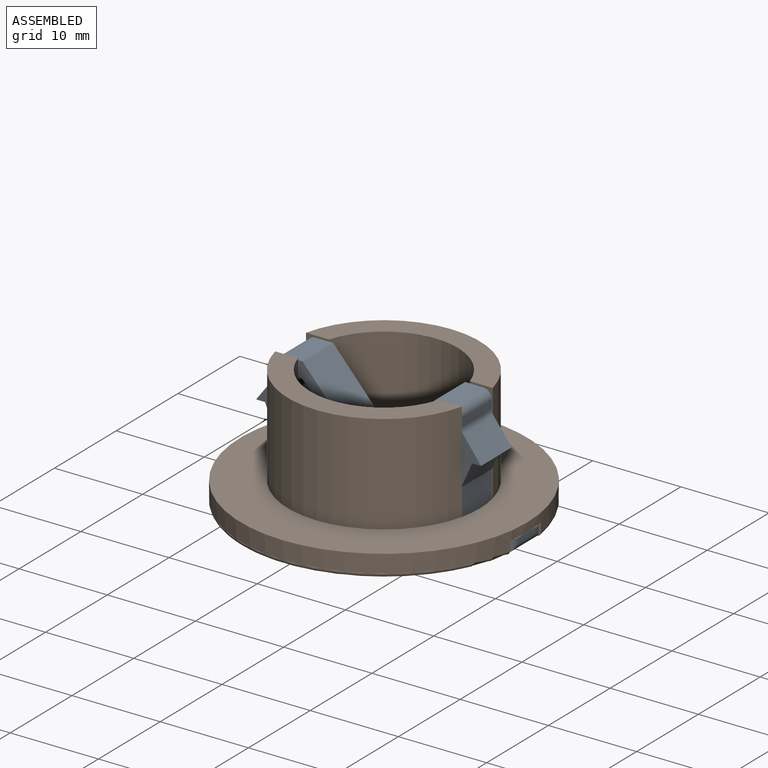
[diagram: assembled view]
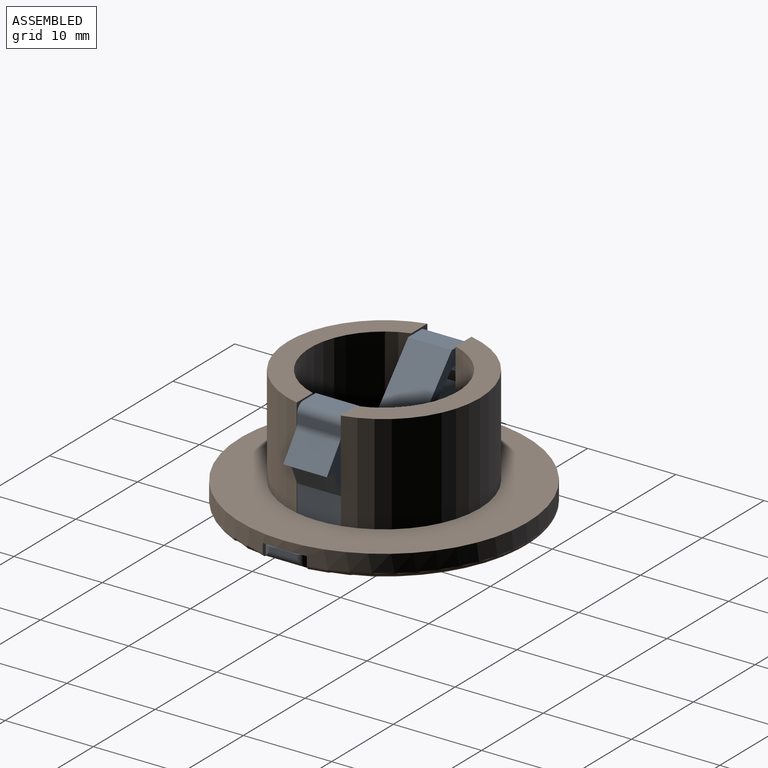
[diagram: assembled view, second angle]
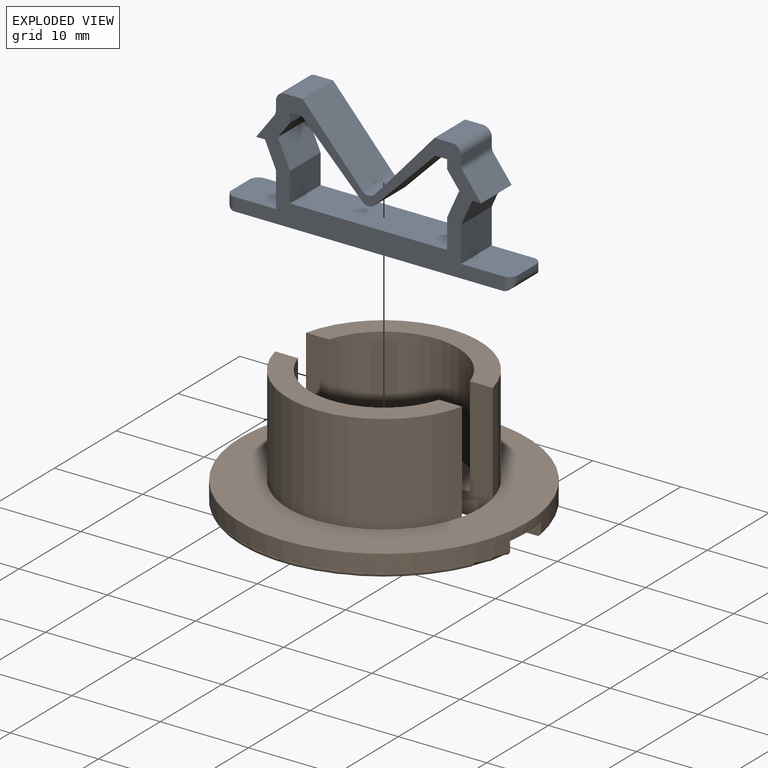
[diagram: exploded view]
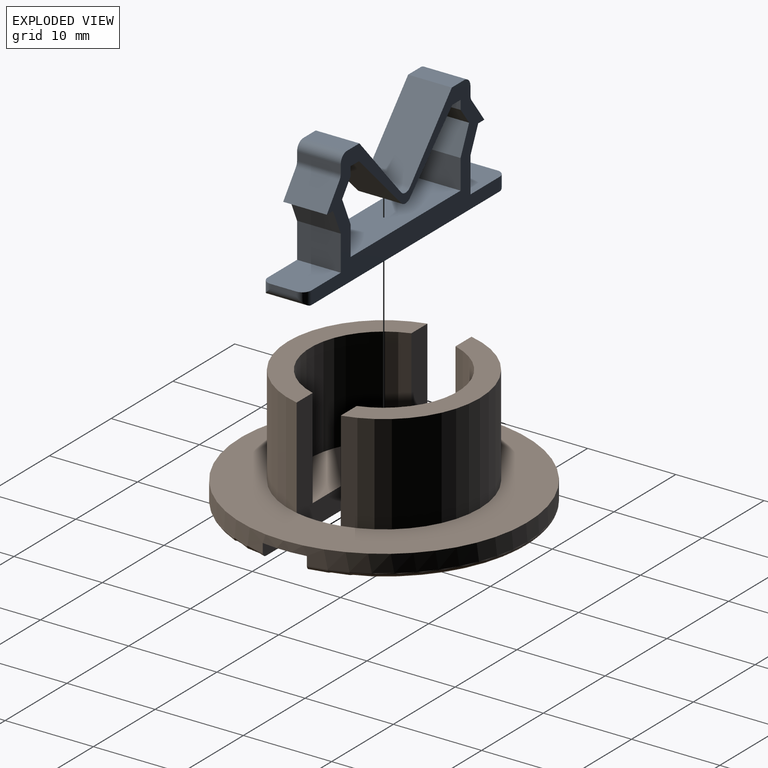
[diagram: exploded view, second angle]
ASSEMBLY  parts=2 mates=2
PART A: 46 faces, bbox 32.5x13.6x5 mm
  f0: plane 4.95x1mm, normal (0,-1,0), area 4.9mm2, adj f1,f31,f32,f33
  f1: plane 4.95x2.73mm, normal (0.8,0.6,0), area 16.9mm2, adj f0,f32,f33,f35
  f2: plane 4.95x0.97mm, normal (1,0,0), area 4.8mm2, adj f32,f33,f35,f36
  f3: plane 4.95x2.02mm, normal (0,1,0), area 10mm2, adj f4,f32,f33,f36
  f4: plane 7.58x6.73mm, normal (-0.75,0.66,0), area 50.2mm2, adj f3,f32,f33,f37
  f5: plane 7.58x6.73mm, normal (0.75,0.66,0), area 50.2mm2, adj f6,f32,f33,f37
  f6: plane 4.95x2.02mm, normal (0,1,0), area 10mm2, adj f5,f32,f33,f38
  f7: plane 4.95x0.97mm, normal (-1,0,0), area 4.8mm2, adj f32,f33,f38,f39
  f8: plane 4.95x2.73mm, normal (-0.8,0.6,0), area 16.9mm2, adj f9,f32,f33,f39
  f9: plane 4.95x1mm, normal (0,-1,0), area 4.9mm2, adj f8,f10,f32,f33
  f10: plane 4.95x2.8mm, normal (-0.91,-0.41,0), area 15.2mm2, adj f9,f11,f32,f33
  f11: plane 4.95x4mm, normal (-1,0,0), area 19.8mm2, adj f10,f12,f32,f33
  f12: plane 5.75x4.95mm, normal (0,1,0), area 28mm2, adj f11,f13,f32,f33,f40,f41
  f13: plane 2.95x0.5mm, normal (-1,0,0), area 1.5mm2, adj f12,f40,f41,f42
  f14: plane 30.5x4.95mm, normal (0,-1,0), area 151mm2, adj f32,f33,f42,f45
  f15: plane 2.95x0.5mm, normal (1,0,0), area 1.5mm2, adj f16,f43,f44,f45
  f16: plane 5.75x4.95mm, normal (0,1,0), area 28mm2, adj f15,f17,f32,f33,f43,f44
  f17: plane 4.95x4mm, normal (1,0,0), area 19.8mm2, adj f16,f31,f32,f33
  f18: plane 17.8x4.95mm, normal (0,1,0), area 88.1mm2, adj f19,f30,f32,f33
  f19: plane 4.95x3.34mm, normal (1,0,0), area 16.5mm2, adj f18,f20,f32,f33
  f20: plane 4.95x3.09mm, normal (0.91,0.41,0), area 16.7mm2, adj f19,f21,f32,f33
  f21: plane 4.95x1.84mm, normal (0.8,-0.6,0), area 11.4mm2, adj f20,f22,f32,f33
  f22: plane 4.95x1.03mm, normal (1,0,0), area 5.1mm2, adj f21,f23,f32,f33
  f23: plane 4.95x1.35mm, normal (0,-1,0), area 6.7mm2, adj f22,f24,f32,f33
  f24: plane 6.9x6.84mm, normal (-0.71,-0.7,0), area 48.1mm2, adj f23,f32,f33,f34
  f25: plane 6.9x6.84mm, normal (0.71,-0.7,0), area 48.1mm2, adj f26,f32,f33,f34
  f26: plane 4.95x1.35mm, normal (0,-1,0), area 6.7mm2, adj f25,f27,f32,f33
  f27: plane 4.95x1.03mm, normal (-1,0,0), area 5.1mm2, adj f26,f28,f32,f33
  f28: plane 4.95x1.84mm, normal (-0.8,-0.6,0), area 11.4mm2, adj f27,f29,f32,f33
  f29: plane 4.95x3.09mm, normal (-0.91,0.41,0), area 16.7mm2, adj f28,f30,f32,f33
  f30: plane 4.95x3.34mm, normal (-1,0,0), area 16.5mm2, adj f18,f29,f32,f33
  f31: plane 4.95x2.8mm, normal (0.91,-0.41,0), area 15.2mm2, adj f0,f17,f32,f33
  f32: plane 30.5x13.6mm, normal (0,0,1), area 132mm2, adj f0,f1,f2,f3,f4,f5,f6,f7
  f33: plane 30.5x13.6mm, normal (0,0,-1), area 132mm2, adj f0,f1,f2,f3,f4,f5,f6,f7
  f34: cylinder r=1mm len=4.95mm, axis (0,0,1), area 7.8mm2, adj f24,f25,f32,f33
  f35: cylinder r=1mm len=4.95mm, axis (0,0,1), area 3.2mm2, adj f1,f2,f32,f33
  f36: cylinder r=1mm len=4.95mm, axis (0,0,-1), area 7.8mm2, adj f2,f3,f32,f33
  f37: cylinder r=1mm len=4.95mm, axis (0,0,-1), area 8.4mm2, adj f4,f5,f32,f33
  f38: cylinder r=1mm len=4.95mm, axis (0,0,-1), area 7.8mm2, adj f6,f7,f32,f33
  f39: cylinder r=1mm len=4.95mm, axis (0,0,1), area 3.2mm2, adj f7,f8,f32,f33
  f40: cylinder r=1mm len=1.5mm, axis (0,1,0), area 1.8mm2, adj f12,f13,f32,f42
  f41: cylinder r=1mm len=1.5mm, axis (0,-1,0), area 1.8mm2, adj f12,f13,f33,f42
  f42: cylinder r=1mm len=4.95mm, axis (0,0,-1), area 6.6mm2, adj f13,f14,f40,f41
  f43: cylinder r=1mm len=1.5mm, axis (0,-1,0), area 1.8mm2, adj f15,f16,f32,f45
  f44: cylinder r=1mm len=1.5mm, axis (0,1,0), area 1.8mm2, adj f15,f16,f33,f45
  f45: cylinder r=1mm len=4.95mm, axis (0,0,1), area 6.6mm2, adj f14,f15,f43,f44
PART B: 20 faces, bbox 34.8x35.2x13.8 mm
  f0: plane 31.1x13.25mm, normal (0,0,-1), area 311.2mm2, adj f2,f17
  f1: plane 31.1x13.25mm, normal (0,0,-1), area 311.2mm2, adj f15,f16
  f2: torus R=15.75mm, axis (0,0,1), area 35.7mm2, adj f0,f12,f17
  f3: cylinder r=10.88mm len=5mm, axis (0,0,1), area 5mm2, adj f13,f16,f17,f19
  f4: cylinder r=10.88mm len=5mm, axis (0,0,1), area 5mm2, adj f13,f16,f17,f18
  f5: cylinder r=10.88mm len=21.17mm, axis (0,0,-1), area 329.1mm2, adj f7,f13,f17
  f6: plane 21.17x8.38mm, normal (0,0,1), area 62.9mm2, adj f10,f14,f16
  f7: plane 21.17x8.38mm, normal (0,0,1), area 62.9mm2, adj f5,f11,f17
  f8: plane 15.99x5.88mm, normal (0,0,1), area 68.9mm2, adj f10,f16
  f9: plane 15.99x5.88mm, normal (0,0,1), area 68.9mm2, adj f11,f17
  f10: cylinder r=8.38mm len=15.99mm, axis (0,0,-1), area 239.9mm2, adj f6,f8,f16
  f11: cylinder r=8.38mm len=15.99mm, axis (0,0,-1), area 239.9mm2, adj f7,f9,f17
  f12: cylinder r=16.25mm len=32.5mm, axis (0,0,-1), area 194.2mm2, adj f2,f13,f15,f16,f17,f18,f19
  f13: plane 32.5x32.5mm, normal (0,0,1), area 458mm2, adj f3,f4,f5,f12,f14
  f14: cylinder r=10.88mm len=21.17mm, axis (0,0,-1), area 329.1mm2, adj f6,f13,f16
  f15: torus R=15.75mm, axis (0,0,1), area 35.7mm2, adj f1,f12,f16
  f16: plane 32.11x13.8mm, normal (0,1,0), area 127.8mm2, adj f1,f3,f4,f6,f8,f10,f12,f14
  f17: plane 32.11x13.8mm, normal (0,-1,0), area 127.8mm2, adj f0,f2,f3,f4,f5,f7,f9,f11
  f18: plane 5.67x5mm, normal (0,0,-1), area 27mm2, adj f4,f12,f16,f17
  f19: plane 5.67x5mm, normal (0,0,-1), area 27mm2, adj f3,f12,f16,f17
PLACE A rot(axis=(1,0,0),90deg) t=(0.01,-5.6,0)mm
PLACE B t=(0,-8.05,0)mm
MATE planar A.f16 <-> B.f19  axis (0,0,1) through (13.34,-8.08,1.5)mm
MATE planar A.f32 <-> B.f16  axis (0,-1,0) through (0.01,-10.55,4.91)mm
